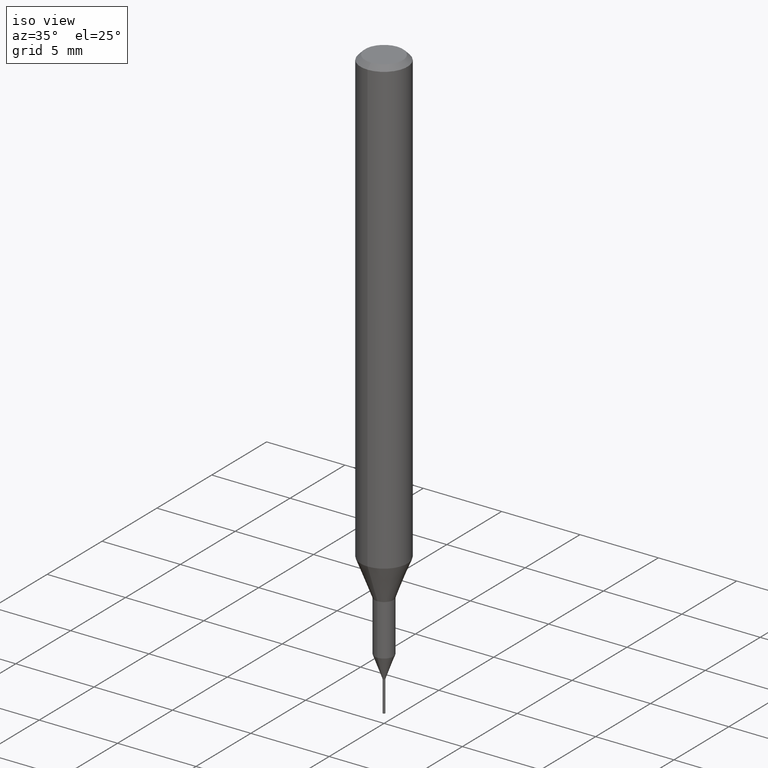
[diagram: clean part render]
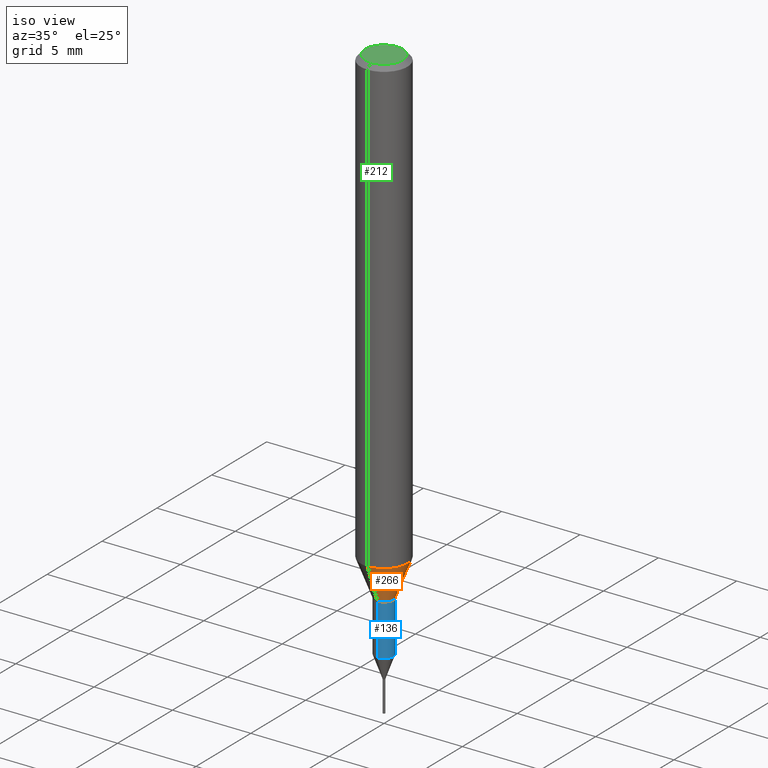
[diagram: same view with three faces highlighted in distinct colors, each labeled with its STEP entity id]
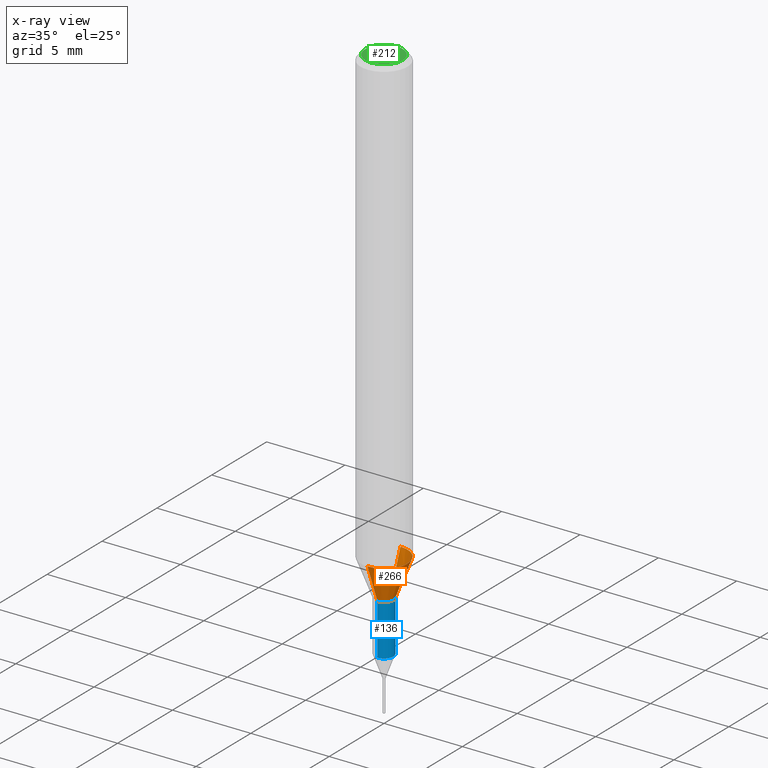
[diagram: x-ray of the same camera — body ghosted, the three highlighted faces saturated]
A machine part, iso view with three faces highlighted in distinct colors.
The next image is the same camera in x-ray (body ghosted, the three faces saturated) — at least one of them is partly hidden behind the body in this view.
Their STEP definitions:

[orange] entity #266 — the highlighted conical surface has half-angle 20.997 deg.
#124=EDGE_CURVE('',#180,#184,#303,.T.);
#126=EDGE_CURVE('',#222,#184,#305,.T.);
#128=VERTEX_POINT('',#307);
#138=EDGE_CURVE('',#180,#128,#319,.T.);
#180=VERTEX_POINT('',#365);
#184=VERTEX_POINT('',#369);
#222=VERTEX_POINT('',#415);
#264=EDGE_CURVE('',#128,#222,#461,.T.);
#266=ADVANCED_FACE('',(#463),#464,.T.);
#303=CIRCLE('',#498,1.5);
#305=LINE('',#501,#502);
#307=CARTESIAN_POINT('',(0.0,0.6,-31.3));
#319=LINE('',#518,#519);
#365=CARTESIAN_POINT('',(0.0,1.5,-28.955));
#369=CARTESIAN_POINT('',(1.83690953073357E-016,-1.5,-28.955));
#415=CARTESIAN_POINT('',(7.34763812293426E-017,-0.6,-31.3));
#461=CIRCLE('',#700,0.6);
#463=FACE_OUTER_BOUND('',#702,.T.);
#464=CONICAL_SURFACE('',#703,1.05,0.366459241971866);
#498=AXIS2_PLACEMENT_3D('',#731,#732,#733);
#501=CARTESIAN_POINT('',(1.2858366715135E-016,-1.05,-30.1275));
#502=VECTOR('',#734,1.0);
#518=CARTESIAN_POINT('',(-1.2858366715135E-016,1.05,-30.1275));
#519=VECTOR('',#754,1.0);
#700=AXIS2_PLACEMENT_3D('',#924,#925,#926);
#702=EDGE_LOOP('',(#928,#929,#930,#931));
#703=AXIS2_PLACEMENT_3D('',#932,#933,#934);
#731=CARTESIAN_POINT('',(0.0,0.0,-28.955));
#732=DIRECTION('',(0.0,0.0,-1.0));
#733=DIRECTION('',(0.0,1.0,0.0));
#734=DIRECTION('',(4.38791184365088E-017,-0.358312026550805,0.93360189140182));
#754=DIRECTION('',(4.38791184365088E-017,-0.358312026550805,-0.93360189140182));
#924=CARTESIAN_POINT('',(0.0,0.0,-31.3));
#925=DIRECTION('',(0.0,0.0,-1.0));
#926=DIRECTION('',(0.0,1.0,0.0));
#928=ORIENTED_EDGE('',*,*,#138,.F.);
#929=ORIENTED_EDGE('',*,*,#124,.T.);
#930=ORIENTED_EDGE('',*,*,#126,.F.);
#931=ORIENTED_EDGE('',*,*,#264,.F.);
#932=CARTESIAN_POINT('',(0.0,0.0,-30.1275));
#933=DIRECTION('',(-0.0,-0.0,1.0));
#934=DIRECTION('',(0.0,1.0,0.0));

[blue] entity #136 — the highlighted cylindrical surface (edge-blend (fillet) strip) has radius 0.5999 mm, axis along (-0, -0, 1).
#120=VERTEX_POINT('',#299);
#122=EDGE_CURVE('',#166,#214,#301,.T.);
#136=ADVANCED_FACE('',(#316),#317,.T.);
#166=VERTEX_POINT('',#351);
#170=EDGE_CURVE('',#166,#120,#355,.T.);
#214=VERTEX_POINT('',#407);
#228=VERTEX_POINT('',#421);
#244=EDGE_CURVE('',#228,#214,#438,.T.);
#258=EDGE_CURVE('',#120,#228,#454,.T.);
#299=CARTESIAN_POINT('',(0.0,0.59995,-34.558));
#301=CIRCLE('',#495,0.59995);
#316=FACE_OUTER_BOUND('',#514,.T.);
#317=CYLINDRICAL_SURFACE('',#515,0.59995);
#351=CARTESIAN_POINT('',(0.0,0.59995,-31.3));
#355=LINE('',#564,#565);
#407=CARTESIAN_POINT('',(7.34702581975735E-017,-0.59995,-31.3));
#421=CARTESIAN_POINT('',(7.34702581975735E-017,-0.59995,-34.558));
#438=LINE('',#669,#670);
#454=CIRCLE('',#692,0.59995);
#495=AXIS2_PLACEMENT_3D('',#728,#729,#730);
#514=EDGE_LOOP('',(#747,#748,#749,#750));
#515=AXIS2_PLACEMENT_3D('',#751,#752,#753);
#564=CARTESIAN_POINT('',(-7.34702581975735E-017,0.59995,-32.929));
#565=VECTOR('',#790,1.0);
#669=CARTESIAN_POINT('',(7.34702581975735E-017,-0.59995,-32.929));
#670=VECTOR('',#891,1.0);
#692=AXIS2_PLACEMENT_3D('',#913,#914,#915);
#728=CARTESIAN_POINT('',(0.0,0.0,-31.3));
#729=DIRECTION('',(0.0,0.0,-1.0));
#730=DIRECTION('',(0.0,1.0,0.0));
#747=ORIENTED_EDGE('',*,*,#170,.F.);
#748=ORIENTED_EDGE('',*,*,#122,.T.);
#749=ORIENTED_EDGE('',*,*,#244,.F.);
#750=ORIENTED_EDGE('',*,*,#258,.F.);
#751=CARTESIAN_POINT('',(0.0,0.0,-32.929));
#752=DIRECTION('',(-0.0,-0.0,1.0));
#753=DIRECTION('',(0.0,1.0,0.0));
#790=DIRECTION('',(0.0,0.0,-1.0));
#891=DIRECTION('',(-0.0,-0.0,1.0));
#913=CARTESIAN_POINT('',(0.0,0.0,-34.558));
#914=DIRECTION('',(0.0,0.0,-1.0));
#915=DIRECTION('',(0.0,1.0,0.0));

[green] entity #212 — the highlighted planar face has unit normal (-0, 0, 1).
#150=VERTEX_POINT('',#333);
#174=VERTEX_POINT('',#359);
#212=ADVANCED_FACE('',(#404),#405,.T.);
#220=EDGE_CURVE('',#150,#174,#413,.T.);
#268=EDGE_CURVE('',#174,#150,#466,.T.);
#333=CARTESIAN_POINT('',(0.0,1.2,0.0));
#359=CARTESIAN_POINT('',(1.46952762458685E-016,-1.2,0.0));
#404=FACE_OUTER_BOUND('',#624,.T.);
#405=PLANE('',#625);
#413=CIRCLE('',#637,1.2);
#466=CIRCLE('',#706,1.2);
#624=EDGE_LOOP('',(#859,#860));
#625=AXIS2_PLACEMENT_3D('',#861,#862,#863);
#637=AXIS2_PLACEMENT_3D('',#868,#869,#870);
#706=AXIS2_PLACEMENT_3D('',#935,#936,#937);
#859=ORIENTED_EDGE('',*,*,#220,.F.);
#860=ORIENTED_EDGE('',*,*,#268,.F.);
#861=CARTESIAN_POINT('',(0.0,0.6,0.0));
#862=DIRECTION('',(-0.0,0.0,1.0));
#863=DIRECTION('',(0.0,-1.0,0.0));
#868=CARTESIAN_POINT('',(0.0,0.0,0.0));
#869=DIRECTION('',(0.0,0.0,-1.0));
#870=DIRECTION('',(0.0,1.0,0.0));
#935=CARTESIAN_POINT('',(0.0,0.0,0.0));
#936=DIRECTION('',(0.0,0.0,-1.0));
#937=DIRECTION('',(0.0,1.0,0.0));